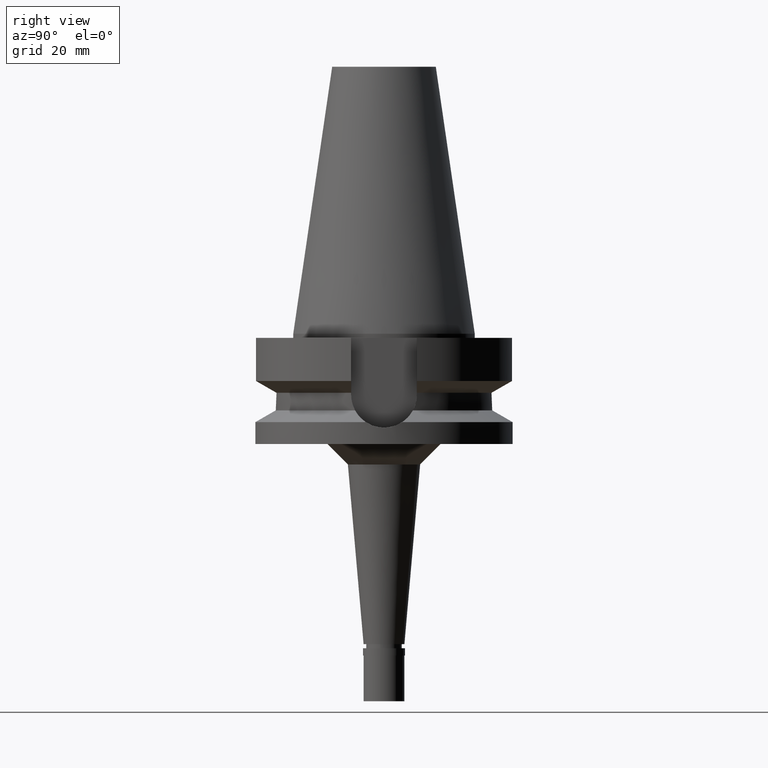
[diagram: clean part render]
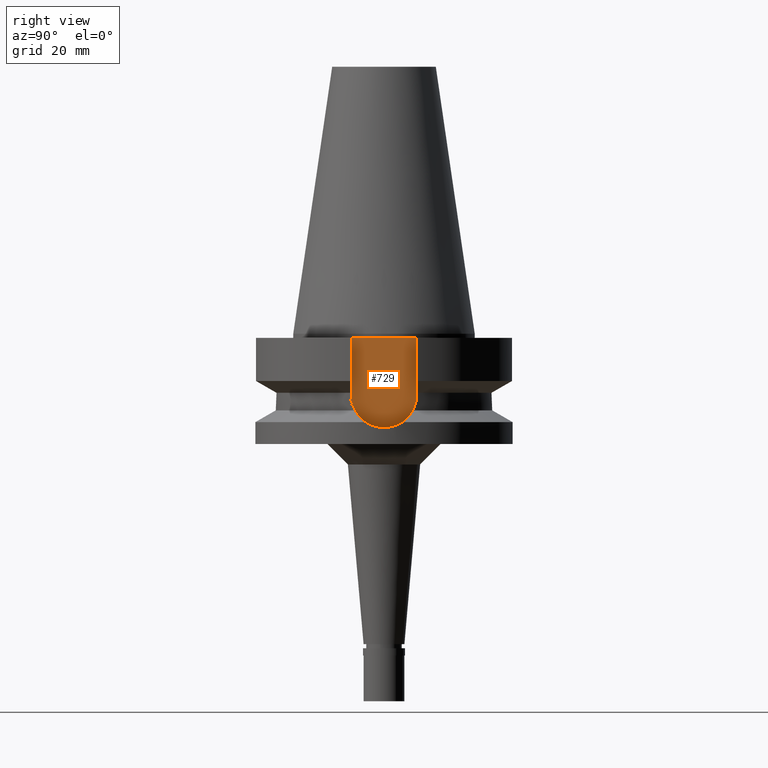
[diagram: same view with one face highlighted and labeled with its STEP entity id]
A machine part, right view. The second image highlights one B-rep face of the part: STEP entity #729.
In plain terms, the highlighted planar face has unit normal (1, 0, 0).
Its self-contained STEP definition (entity closure, byte-faithful):
#43 = CARTESIAN_POINT ( 'NONE',  ( 22.50000000000000000, -8.050000000000000711, -1.000000000000000000 ) ) ;
#111 = LINE ( 'NONE', #997, #1865 ) ;
#160 = DIRECTION ( 'NONE',  ( 0.0000000000000000000, 1.000000000000000000, 0.0000000000000000000 ) ) ;
#171 = DIRECTION ( 'NONE',  ( 0.0000000000000000000, 0.0000000000000000000, -1.000000000000000000 ) ) ;
#241 = EDGE_LOOP ( 'NONE', ( #1311, #807, #2216, #2602 ) ) ;
#323 = DIRECTION ( 'NONE',  ( 0.0000000000000000000, 0.0000000000000000000, 1.000000000000000000 ) ) ;
#373 = CARTESIAN_POINT ( 'NONE',  ( 22.50000000000000000, 0.0000000000000000000, 0.0000000000000000000 ) ) ;
#519 = VECTOR ( 'NONE', #171, 1000.000000000000000 ) ;
#572 = VERTEX_POINT ( 'NONE', #43 ) ;
#614 = DIRECTION ( 'NONE',  ( 0.0000000000000000000, 0.0000000000000000000, -1.000000000000000000 ) ) ;
#649 = FACE_OUTER_BOUND ( 'NONE', #241, .T. ) ;
#729 = ADVANCED_FACE ( 'NONE', ( #649 ), #1505, .T. ) ;
#807 = ORIENTED_EDGE ( 'NONE', *, *, #2332, .F. ) ;
#853 = CARTESIAN_POINT ( 'NONE',  ( 22.50000000000000000, -8.050000000000000711, -14.94999999999999929 ) ) ;
#882 = CARTESIAN_POINT ( 'NONE',  ( 22.50000000000000000, 0.0000000000000000000, -14.94999999999999929 ) ) ;
#997 = CARTESIAN_POINT ( 'NONE',  ( 22.50000000000000000, -8.050000000000000711, -14.94999999999999929 ) ) ;
#1038 = CIRCLE ( 'NONE', #2701, 8.050000000000000711 ) ;
#1067 = DIRECTION ( 'NONE',  ( -1.000000000000000000, 0.0000000000000000000, 0.0000000000000000000 ) ) ;
#1311 = ORIENTED_EDGE ( 'NONE', *, *, #2313, .F. ) ;
#1505 = PLANE ( 'NONE',  #2492 ) ;
#1526 = CARTESIAN_POINT ( 'NONE',  ( 22.50000000000000000, 8.050000000000000711, -1.000000000000000000 ) ) ;
#1609 = CARTESIAN_POINT ( 'NONE',  ( 22.50000000000000000, 8.050000000000000711, -14.94999999999999929 ) ) ;
#1691 = CARTESIAN_POINT ( 'NONE',  ( 22.50000000000000000, 8.050000000000000711, -1.000000000000000000 ) ) ;
#1728 = EDGE_CURVE ( 'NONE', #2820, #572, #2897, .T. ) ;
#1735 = DIRECTION ( 'NONE',  ( 0.0000000000000000000, -1.000000000000000000, 0.0000000000000000000 ) ) ;
#1802 = LINE ( 'NONE', #1526, #519 ) ;
#1865 = VECTOR ( 'NONE', #323, 1000.000000000000000 ) ;
#2000 = VECTOR ( 'NONE', #1735, 1000.000000000000000 ) ;
#2214 = DIRECTION ( 'NONE',  ( 1.000000000000000000, 0.0000000000000000000, 0.0000000000000000000 ) ) ;
#2216 = ORIENTED_EDGE ( 'NONE', *, *, #2378, .F. ) ;
#2313 = EDGE_CURVE ( 'NONE', #2382, #572, #111, .T. ) ;
#2332 = EDGE_CURVE ( 'NONE', #2700, #2382, #1038, .T. ) ;
#2378 = EDGE_CURVE ( 'NONE', #2820, #2700, #1802, .T. ) ;
#2382 = VERTEX_POINT ( 'NONE', #853 ) ;
#2492 = AXIS2_PLACEMENT_3D ( 'NONE', #373, #2214, #160 ) ;
#2602 = ORIENTED_EDGE ( 'NONE', *, *, #1728, .T. ) ;
#2626 = CARTESIAN_POINT ( 'NONE',  ( 22.50000000000000000, 8.050000000000000711, -1.000000000000000000 ) ) ;
#2700 = VERTEX_POINT ( 'NONE', #1609 ) ;
#2701 = AXIS2_PLACEMENT_3D ( 'NONE', #882, #1067, #614 ) ;
#2820 = VERTEX_POINT ( 'NONE', #1691 ) ;
#2897 = LINE ( 'NONE', #2626, #2000 ) ;